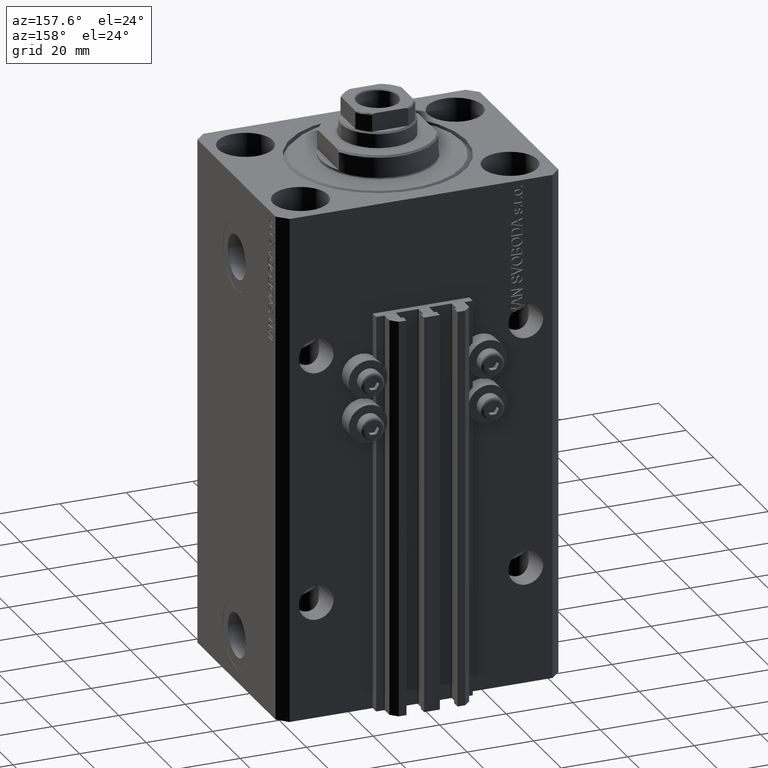
[diagram: clean part render]
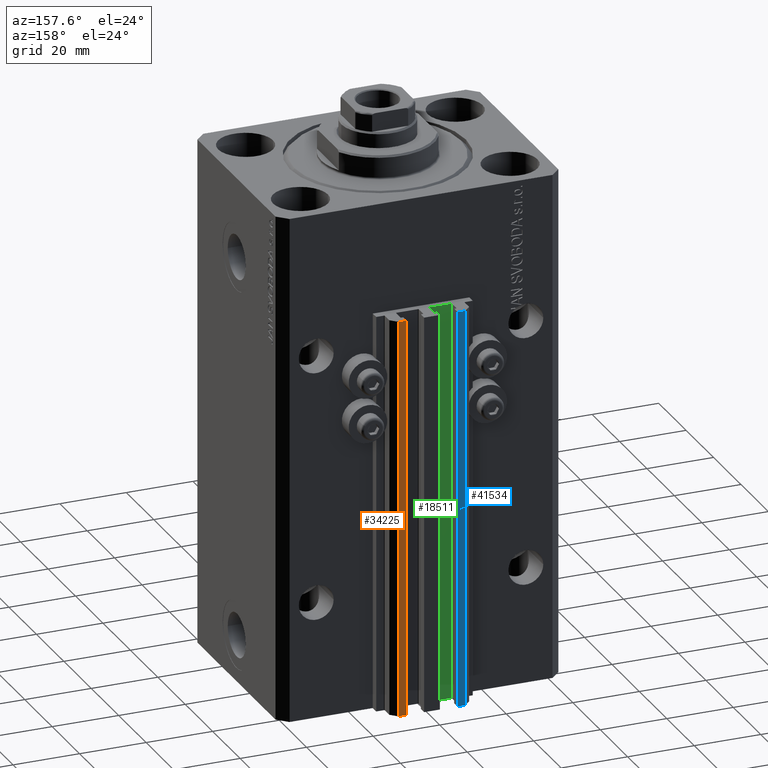
[diagram: same view with three faces highlighted in distinct colors, each labeled with its STEP entity id]
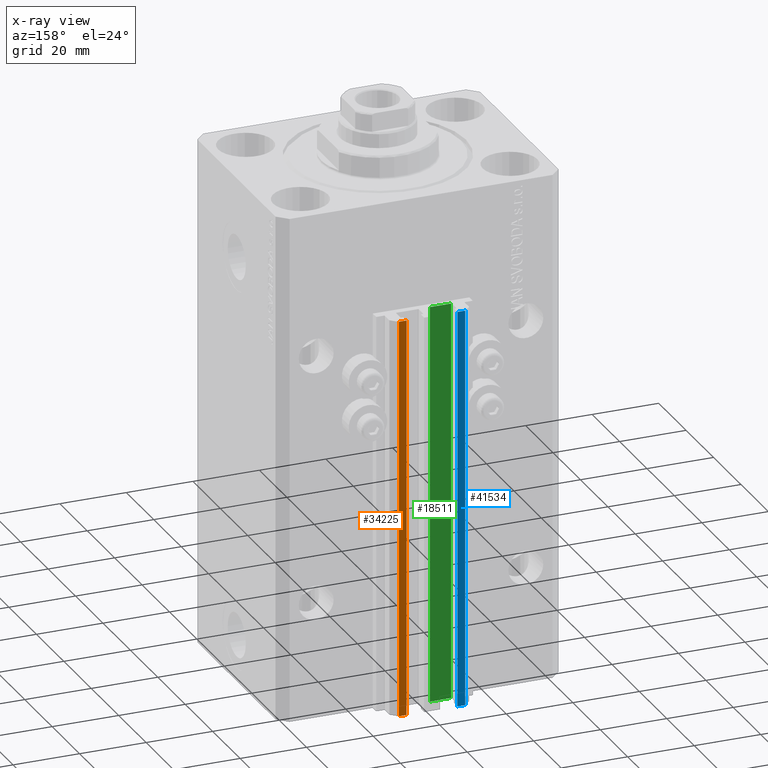
[diagram: x-ray of the same camera — body ghosted, the three highlighted faces saturated]
A machine part, auxiliary view with three faces highlighted in distinct colors.
The next image is the same camera in x-ray (body ghosted, the three faces saturated) — at least one of them is partly hidden behind the body in this view.
Their STEP definitions:

[orange] entity #34225 — the highlighted planar face has unit normal (0, 1, 0).
#2901 = EDGE_CURVE ( 'NONE', #4792, #25303, #8059, .T. ) ;
#4001 = ORIENTED_EDGE ( 'NONE', *, *, #38741, .T. ) ;
#4196 = CARTESIAN_POINT ( 'NONE',  ( 7.649999999999998579, 39.50000000000002132, -33.00000000000000000 ) ) ;
#4792 = VERTEX_POINT ( 'NONE', #11256 ) ;
#7152 = VERTEX_POINT ( 'NONE', #44583 ) ;
#8059 = LINE ( 'NONE', #38011, #20543 ) ;
#8811 = LINE ( 'NONE', #34642, #25928 ) ;
#9658 = AXIS2_PLACEMENT_3D ( 'NONE', #10630, #40571, #29377 ) ;
#10567 = CARTESIAN_POINT ( 'NONE',  ( 9.999999999999998224, 39.50000000000002132, -33.00000000000000000 ) ) ;
#10630 = CARTESIAN_POINT ( 'NONE',  ( 9.999999999999998224, 39.50000000000002132, -153.0000000000000000 ) ) ;
#11256 = CARTESIAN_POINT ( 'NONE',  ( 7.649999999999998579, 39.50000000000002132, -153.0000000000000000 ) ) ;
#14040 = PLANE ( 'NONE',  #9658 ) ;
#19292 = DIRECTION ( 'NONE',  ( -1.000000000000000000, 0.000000000000000000, 0.000000000000000000 ) ) ;
#20304 = VERTEX_POINT ( 'NONE', #10567 ) ;
#20543 = VECTOR ( 'NONE', #22221, 1000.000000000000000 ) ;
#22221 = DIRECTION ( 'NONE',  ( 0.000000000000000000, 0.000000000000000000, 1.000000000000000000 ) ) ;
#23017 = CARTESIAN_POINT ( 'NONE',  ( 9.999999999999998224, 39.50000000000002132, -153.0000000000000000 ) ) ;
#23039 = EDGE_LOOP ( 'NONE', ( #24183, #44644, #4001, #42935 ) ) ;
#23624 = CARTESIAN_POINT ( 'NONE',  ( 9.999999999999998224, 39.50000000000002132, -33.00000000000000000 ) ) ;
#23920 = EDGE_CURVE ( 'NONE', #20304, #25303, #41393, .T. ) ;
#24183 = ORIENTED_EDGE ( 'NONE', *, *, #23920, .F. ) ;
#25303 = VERTEX_POINT ( 'NONE', #4196 ) ;
#25928 = VECTOR ( 'NONE', #19292, 1000.000000000000000 ) ;
#28618 = EDGE_CURVE ( 'NONE', #7152, #20304, #30300, .T. ) ;
#29377 = DIRECTION ( 'NONE',  ( 0.000000000000000000, 0.000000000000000000, 1.000000000000000000 ) ) ;
#30300 = LINE ( 'NONE', #23017, #40664 ) ;
#34225 = ADVANCED_FACE ( 'NONE', ( #47890 ), #14040, .T. ) ;
#34336 = DIRECTION ( 'NONE',  ( -1.000000000000000000, 0.000000000000000000, 0.000000000000000000 ) ) ;
#34642 = CARTESIAN_POINT ( 'NONE',  ( 9.999999999999998224, 39.50000000000002132, -153.0000000000000000 ) ) ;
#37404 = VECTOR ( 'NONE', #34336, 1000.000000000000000 ) ;
#38011 = CARTESIAN_POINT ( 'NONE',  ( 7.649999999999998579, 39.50000000000002132, -153.0000000000000000 ) ) ;
#38741 = EDGE_CURVE ( 'NONE', #7152, #4792, #8811, .T. ) ;
#40571 = DIRECTION ( 'NONE',  ( 0.000000000000000000, 1.000000000000000000, -0.000000000000000000 ) ) ;
#40664 = VECTOR ( 'NONE', #44443, 1000.000000000000000 ) ;
#41393 = LINE ( 'NONE', #23624, #37404 ) ;
#42935 = ORIENTED_EDGE ( 'NONE', *, *, #2901, .T. ) ;
#44443 = DIRECTION ( 'NONE',  ( 0.000000000000000000, 0.000000000000000000, 1.000000000000000000 ) ) ;
#44583 = CARTESIAN_POINT ( 'NONE',  ( 9.999999999999998224, 39.50000000000002132, -153.0000000000000000 ) ) ;
#44644 = ORIENTED_EDGE ( 'NONE', *, *, #28618, .F. ) ;
#47890 = FACE_OUTER_BOUND ( 'NONE', #23039, .T. ) ;

[blue] entity #41534 — the highlighted planar face has unit normal (0, 1, 0).
#5015 = VECTOR ( 'NONE', #14805, 1000.000000000000000 ) ;
#5261 = CARTESIAN_POINT ( 'NONE',  ( -7.650000000000002132, 39.49999999999999289, -153.0000000000000000 ) ) ;
#5815 = ORIENTED_EDGE ( 'NONE', *, *, #33235, .T. ) ;
#5832 = PLANE ( 'NONE',  #8933 ) ;
#6074 = DIRECTION ( 'NONE',  ( -1.000000000000000000, 0.000000000000000000, 0.000000000000000000 ) ) ;
#7394 = EDGE_CURVE ( 'NONE', #31044, #18664, #7979, .T. ) ;
#7979 = LINE ( 'NONE', #14563, #5015 ) ;
#8933 = AXIS2_PLACEMENT_3D ( 'NONE', #28471, #21162, #46968 ) ;
#10309 = DIRECTION ( 'NONE',  ( -1.000000000000000000, 0.000000000000000000, 0.000000000000000000 ) ) ;
#13732 = LINE ( 'NONE', #47333, #25161 ) ;
#13846 = CARTESIAN_POINT ( 'NONE',  ( -7.650000000000002132, 39.49999999999999289, -33.00000000000000000 ) ) ;
#14563 = CARTESIAN_POINT ( 'NONE',  ( -10.00000000000000000, 39.49999999999999289, -153.0000000000000000 ) ) ;
#14805 = DIRECTION ( 'NONE',  ( 0.000000000000000000, 0.000000000000000000, 1.000000000000000000 ) ) ;
#15529 = DIRECTION ( 'NONE',  ( 0.000000000000000000, 0.000000000000000000, 1.000000000000000000 ) ) ;
#17636 = ORIENTED_EDGE ( 'NONE', *, *, #32723, .F. ) ;
#18664 = VERTEX_POINT ( 'NONE', #20804 ) ;
#19691 = VECTOR ( 'NONE', #15529, 1000.000000000000000 ) ;
#20804 = CARTESIAN_POINT ( 'NONE',  ( -10.00000000000000000, 39.49999999999999289, -33.00000000000000000 ) ) ;
#21162 = DIRECTION ( 'NONE',  ( 0.000000000000000000, 1.000000000000000000, -0.000000000000000000 ) ) ;
#25161 = VECTOR ( 'NONE', #10309, 1000.000000000000000 ) ;
#28471 = CARTESIAN_POINT ( 'NONE',  ( -7.650000000000002132, 39.49999999999999289, -153.0000000000000000 ) ) ;
#30951 = ORIENTED_EDGE ( 'NONE', *, *, #7394, .T. ) ;
#31044 = VERTEX_POINT ( 'NONE', #40542 ) ;
#31485 = VERTEX_POINT ( 'NONE', #41387 ) ;
#32723 = EDGE_CURVE ( 'NONE', #35343, #31485, #45242, .T. ) ;
#33235 = EDGE_CURVE ( 'NONE', #35343, #31044, #13732, .T. ) ;
#33706 = EDGE_LOOP ( 'NONE', ( #36502, #17636, #5815, #30951 ) ) ;
#35343 = VERTEX_POINT ( 'NONE', #5261 ) ;
#36502 = ORIENTED_EDGE ( 'NONE', *, *, #42495, .F. ) ;
#38947 = FACE_OUTER_BOUND ( 'NONE', #33706, .T. ) ;
#40542 = CARTESIAN_POINT ( 'NONE',  ( -10.00000000000000000, 39.49999999999999289, -153.0000000000000000 ) ) ;
#41387 = CARTESIAN_POINT ( 'NONE',  ( -7.650000000000002132, 39.49999999999999289, -33.00000000000000000 ) ) ;
#41534 = ADVANCED_FACE ( 'NONE', ( #38947 ), #5832, .T. ) ;
#42420 = VECTOR ( 'NONE', #6074, 1000.000000000000000 ) ;
#42495 = EDGE_CURVE ( 'NONE', #31485, #18664, #47218, .T. ) ;
#44518 = CARTESIAN_POINT ( 'NONE',  ( -7.650000000000002132, 39.49999999999999289, -153.0000000000000000 ) ) ;
#45242 = LINE ( 'NONE', #44518, #19691 ) ;
#46968 = DIRECTION ( 'NONE',  ( 0.000000000000000000, 0.000000000000000000, 1.000000000000000000 ) ) ;
#47218 = LINE ( 'NONE', #13846, #42420 ) ;
#47333 = CARTESIAN_POINT ( 'NONE',  ( -7.650000000000002132, 39.49999999999999289, -153.0000000000000000 ) ) ;

[green] entity #18511 — the highlighted planar face has unit normal (0, 1, 0).
#197 = LINE ( 'NONE', #15034, #2716 ) ;
#714 = ORIENTED_EDGE ( 'NONE', *, *, #41709, .F. ) ;
#1930 = VECTOR ( 'NONE', #36072, 1000.000000000000000 ) ;
#2572 = PLANE ( 'NONE',  #24934 ) ;
#2716 = VECTOR ( 'NONE', #48154, 1000.000000000000000 ) ;
#4426 = VERTEX_POINT ( 'NONE', #39810 ) ;
#5783 = VERTEX_POINT ( 'NONE', #26183 ) ;
#6671 = VECTOR ( 'NONE', #13859, 1000.000000000000000 ) ;
#6793 = CARTESIAN_POINT ( 'NONE',  ( -8.199999999999997513, 33.50000000000000000, -153.0000000000000000 ) ) ;
#13766 = DIRECTION ( 'NONE',  ( 0.000000000000000000, 1.000000000000000000, -0.000000000000000000 ) ) ;
#13859 = DIRECTION ( 'NONE',  ( 0.000000000000000000, 0.000000000000000000, 1.000000000000000000 ) ) ;
#14134 = CARTESIAN_POINT ( 'NONE',  ( -1.800000000000000933, 33.50000000000000000, -33.00000000000000000 ) ) ;
#15034 = CARTESIAN_POINT ( 'NONE',  ( -1.800000000000000933, 33.50000000000000000, -153.0000000000000000 ) ) ;
#16241 = CARTESIAN_POINT ( 'NONE',  ( -1.800000000000000933, 33.50000000000000000, -153.0000000000000000 ) ) ;
#17171 = VECTOR ( 'NONE', #42298, 1000.000000000000000 ) ;
#17416 = CARTESIAN_POINT ( 'NONE',  ( -1.800000000000000933, 33.50000000000000000, -153.0000000000000000 ) ) ;
#18511 = ADVANCED_FACE ( 'NONE', ( #35935 ), #2572, .T. ) ;
#23270 = EDGE_CURVE ( 'NONE', #25861, #39391, #30860, .T. ) ;
#23789 = DIRECTION ( 'NONE',  ( 0.000000000000000000, 0.000000000000000000, 1.000000000000000000 ) ) ;
#24934 = AXIS2_PLACEMENT_3D ( 'NONE', #17416, #13766, #23789 ) ;
#25586 = LINE ( 'NONE', #14134, #1930 ) ;
#25861 = VERTEX_POINT ( 'NONE', #35156 ) ;
#26183 = CARTESIAN_POINT ( 'NONE',  ( -8.199999999999997513, 33.50000000000000000, -33.00000000000000000 ) ) ;
#30860 = LINE ( 'NONE', #16241, #17171 ) ;
#32564 = CARTESIAN_POINT ( 'NONE',  ( -8.199999999999997513, 33.50000000000000000, -153.0000000000000000 ) ) ;
#35156 = CARTESIAN_POINT ( 'NONE',  ( -1.800000000000000933, 33.50000000000000000, -153.0000000000000000 ) ) ;
#35935 = FACE_OUTER_BOUND ( 'NONE', #47455, .T. ) ;
#36072 = DIRECTION ( 'NONE',  ( -1.000000000000000000, 0.000000000000000000, 0.000000000000000000 ) ) ;
#37223 = ORIENTED_EDGE ( 'NONE', *, *, #23270, .T. ) ;
#39391 = VERTEX_POINT ( 'NONE', #32564 ) ;
#39810 = CARTESIAN_POINT ( 'NONE',  ( -1.800000000000000933, 33.50000000000000000, -33.00000000000000000 ) ) ;
#40395 = ORIENTED_EDGE ( 'NONE', *, *, #44280, .T. ) ;
#41087 = ORIENTED_EDGE ( 'NONE', *, *, #42278, .F. ) ;
#41709 = EDGE_CURVE ( 'NONE', #25861, #4426, #197, .T. ) ;
#42278 = EDGE_CURVE ( 'NONE', #4426, #5783, #25586, .T. ) ;
#42298 = DIRECTION ( 'NONE',  ( -1.000000000000000000, 0.000000000000000000, 0.000000000000000000 ) ) ;
#44280 = EDGE_CURVE ( 'NONE', #39391, #5783, #47231, .T. ) ;
#47231 = LINE ( 'NONE', #6793, #6671 ) ;
#47455 = EDGE_LOOP ( 'NONE', ( #41087, #714, #37223, #40395 ) ) ;
#48154 = DIRECTION ( 'NONE',  ( 0.000000000000000000, 0.000000000000000000, 1.000000000000000000 ) ) ;